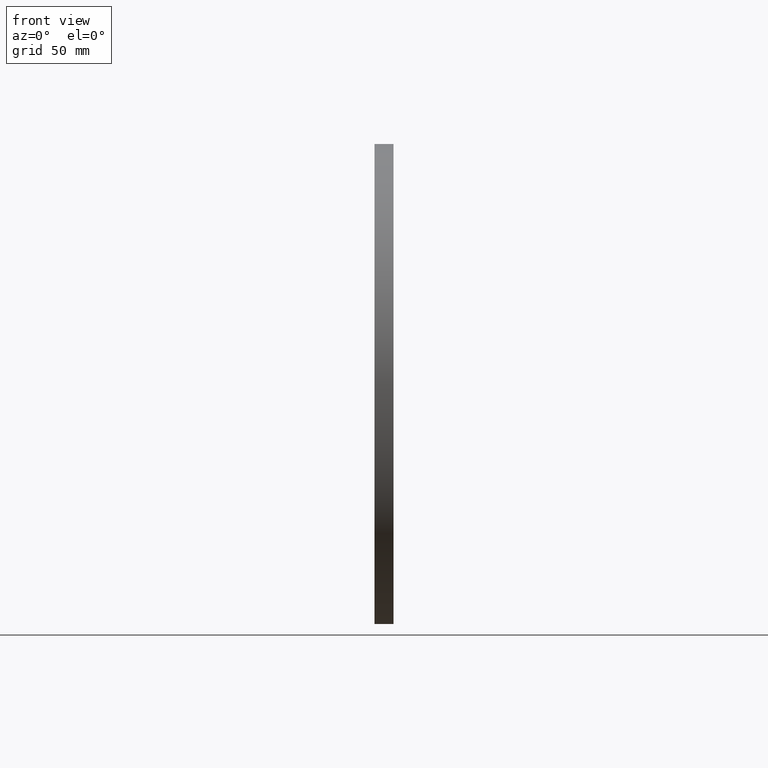
[diagram: clean part render]
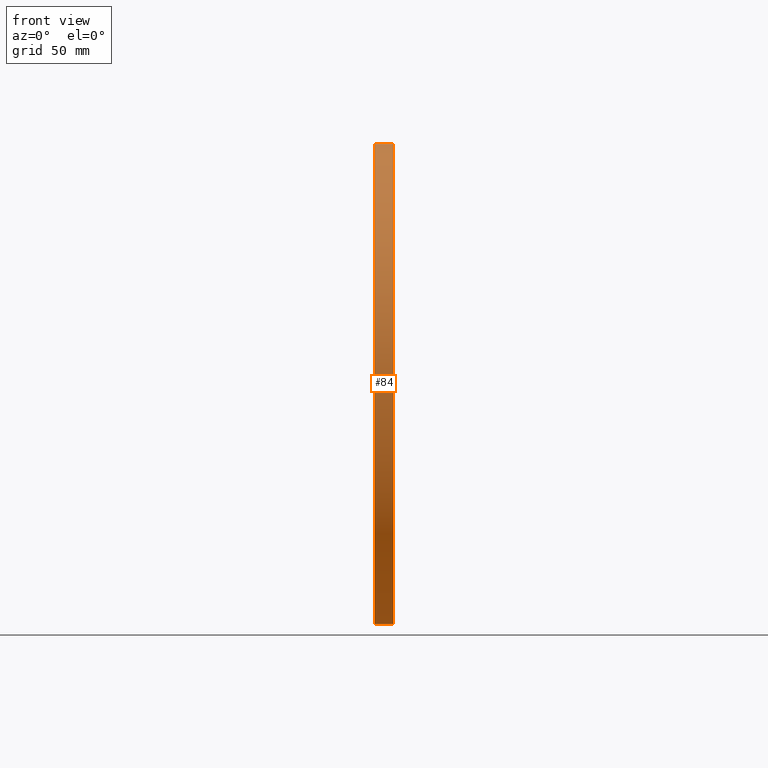
[diagram: same view with one face highlighted and labeled with its STEP entity id]
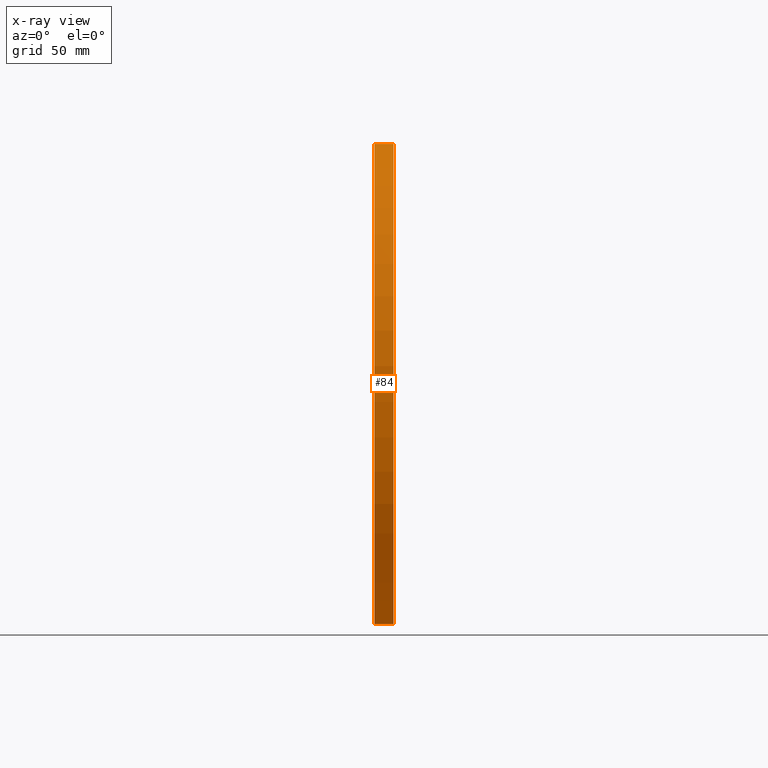
[diagram: x-ray of the same camera — body ghosted, the highlighted face saturated]
A machine part, front view. The second image highlights one B-rep face of the part: STEP entity #84.
The next image is the same camera in x-ray: the body ghosted, the highlighted face saturated — about 0% of this face is hidden behind the body in this view.
In plain terms, the highlighted cylindrical surface (partial cylindrical patch) has radius 119.618 mm, axis along (1, -0, -0).
Its self-contained STEP definition (entity closure, byte-faithful):
#13 = VERTEX_POINT ( 'NONE', #115 ) ;
#15 = VERTEX_POINT ( 'NONE', #113 ) ;
#17 = EDGE_CURVE ( 'NONE', #15, #13, #112, .T. ) ;
#31 = EDGE_CURVE ( 'NONE', #13, #73, #48, .T. ) ;
#44 = DIRECTION ( 'NONE',  ( 0.0000000000000000000, 0.0000000000000000000, -1.000000000000000000 ) ) ;
#45 = DIRECTION ( 'NONE',  ( -1.000000000000000000, -0.0000000000000000000, -0.0000000000000000000 ) ) ;
#46 = CARTESIAN_POINT ( 'NONE',  ( 0.1875000000000000300, 0.0000000000000000000, 0.0000000000000000000 ) ) ;
#47 = AXIS2_PLACEMENT_3D ( 'NONE', #46, #45, #44 ) ;
#48 = CIRCLE ( 'NONE', #47, 4.709374999999999600 ) ;
#71 = EDGE_CURVE ( 'NONE', #72, #73, #177, .T. ) ;
#72 = VERTEX_POINT ( 'NONE', #315 ) ;
#73 = VERTEX_POINT ( 'NONE', #314 ) ;
#74 = ORIENTED_EDGE ( 'NONE', *, *, #88, .F. ) ;
#75 = ORIENTED_EDGE ( 'NONE', *, *, #17, .T. ) ;
#76 = ORIENTED_EDGE ( 'NONE', *, *, #31, .T. ) ;
#77 = ORIENTED_EDGE ( 'NONE', *, *, #71, .F. ) ;
#84 = ADVANCED_FACE ( 'NONE', ( #168 ), #174, .T. ) ;
#85 = EDGE_LOOP ( 'NONE', ( #76, #77, #74, #75 ) ) ;
#88 = EDGE_CURVE ( 'NONE', #15, #72, #169, .T. ) ;
#109 = DIRECTION ( 'NONE',  ( 1.000000000000000000, -0.0000000000000000000, -0.0000000000000000000 ) ) ;
#110 = VECTOR ( 'NONE', #109, 39.37007874015748100 ) ;
#111 = CARTESIAN_POINT ( 'NONE',  ( -0.1875000000000000300, 0.0000000000000000000, -4.709374999999999600 ) ) ;
#112 = LINE ( 'NONE', #111, #110 ) ;
#113 = CARTESIAN_POINT ( 'NONE',  ( -0.1875000000000000300, 0.0000000000000000000, -4.709374999999999600 ) ) ;
#115 = CARTESIAN_POINT ( 'NONE',  ( 0.1875000000000000300, 0.0000000000000000000, -4.709374999999999600 ) ) ;
#167 = DIRECTION ( 'NONE',  ( 1.000000000000000000, -0.0000000000000000000, -0.0000000000000000000 ) ) ;
#168 = FACE_OUTER_BOUND ( 'NONE', #85, .T. ) ;
#169 = CIRCLE ( 'NONE', #310, 4.709374999999999600 ) ;
#170 = CARTESIAN_POINT ( 'NONE',  ( -0.1875000000000000300, 0.0000000000000000000, 0.0000000000000000000 ) ) ;
#171 = DIRECTION ( 'NONE',  ( 0.0000000000000000000, 0.0000000000000000000, -1.000000000000000000 ) ) ;
#172 = AXIS2_PLACEMENT_3D ( 'NONE', #173, #167, #171 ) ;
#173 = CARTESIAN_POINT ( 'NONE',  ( -0.1875000000000000300, 0.0000000000000000000, 0.0000000000000000000 ) ) ;
#174 = CYLINDRICAL_SURFACE ( 'NONE', #172, 4.709374999999999600 ) ;
#175 = VECTOR ( 'NONE', #316, 39.37007874015748100 ) ;
#176 = CARTESIAN_POINT ( 'NONE',  ( -0.1875000000000000300, 0.0000000000000000000, 4.709374999999999600 ) ) ;
#177 = LINE ( 'NONE', #176, #175 ) ;
#308 = DIRECTION ( 'NONE',  ( 0.0000000000000000000, 0.0000000000000000000, -1.000000000000000000 ) ) ;
#309 = DIRECTION ( 'NONE',  ( -1.000000000000000000, -0.0000000000000000000, -0.0000000000000000000 ) ) ;
#310 = AXIS2_PLACEMENT_3D ( 'NONE', #170, #309, #308 ) ;
#314 = CARTESIAN_POINT ( 'NONE',  ( 0.1875000000000000300, 0.0000000000000000000, 4.709374999999999600 ) ) ;
#315 = CARTESIAN_POINT ( 'NONE',  ( -0.1875000000000000300, -6.301369785385781500E-016, 4.709374999999999600 ) ) ;
#316 = DIRECTION ( 'NONE',  ( 1.000000000000000000, -0.0000000000000000000, -0.0000000000000000000 ) ) ;